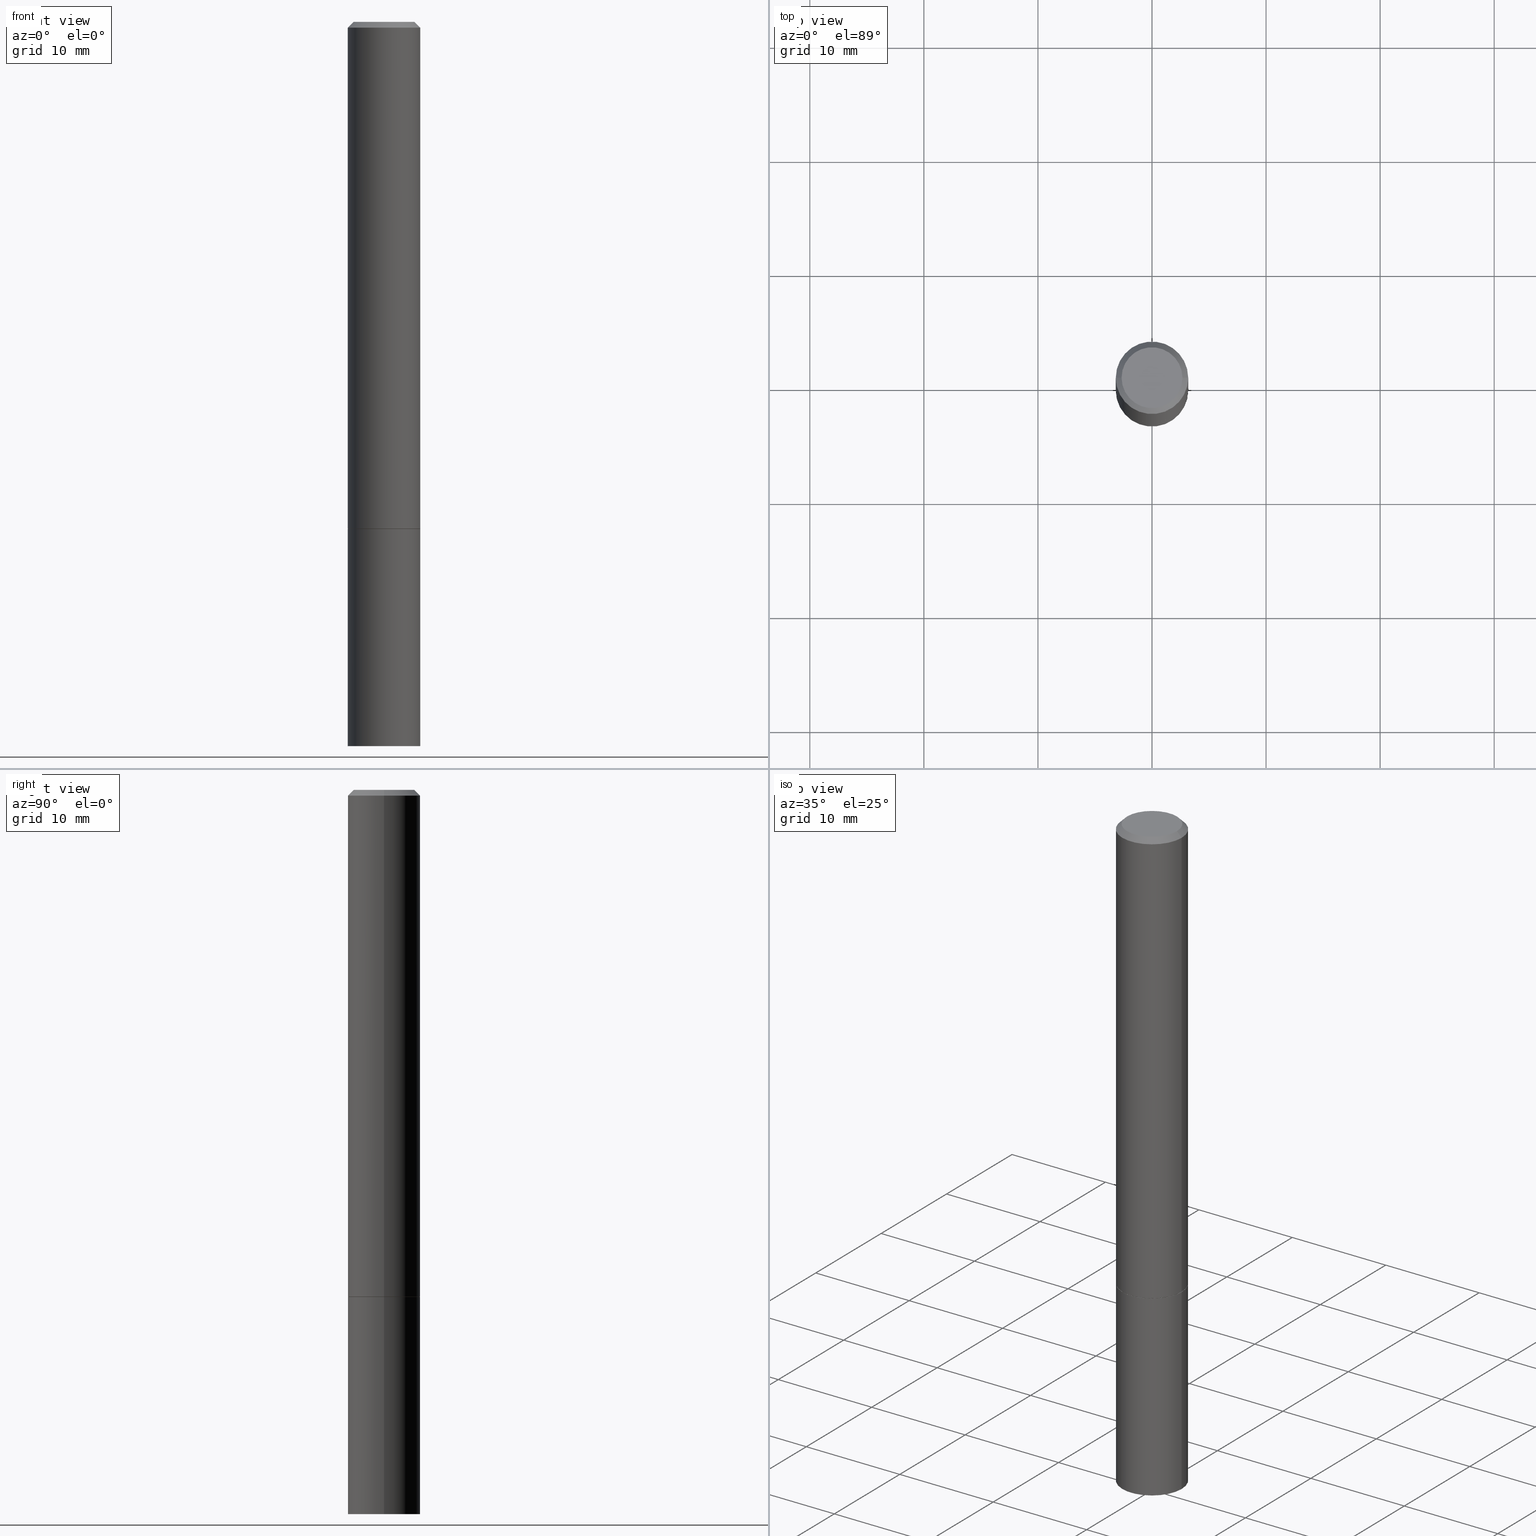
[diagram: canonical four-view strip — front | top / right | iso, engineering-drawing reading convention]
A machine part, canonical four-view strip (front | top / right | iso — engineering-drawing reading convention). The complete STEP part file that produces these views, byte-faithful:
ISO-10303-21;
HEADER;
FILE_DESCRIPTION (( 'STEP AP203' ),
    '1' );
FILE_NAME ('34704.STEP',
    '2024-02-27T16:46:14',
    ( '' ),
    ( '' ),
    'SwSTEP 2.0',
    'SolidWorks 2023',
    '' );
FILE_SCHEMA (( 'CONFIG_CONTROL_DESIGN' ));
ENDSEC;

DATA;
#1 = EDGE_LOOP ( 'NONE', ( #286, #320, #171, #222 ) ) ;
#2 = DIRECTION ( 'NONE',  ( 2.445468806185136597E-29, -3.491481338843145583E-15, -1.000000000000000000 ) ) ;
#3 = CIRCLE ( 'NONE', #174, 0.1249999999999997780 ) ;
#4 = EDGE_CURVE ( 'NONE', #283, #175, #153, .T. ) ;
#5 = DIRECTION ( 'NONE',  ( -2.445468806185136877E-29, 3.491481338843145188E-15, 1.000000000000000000 ) ) ;
#6 = PRODUCT_DEFINITION_FORMATION_WITH_SPECIFIED_SOURCE ( 'ANY', '', #290, .NOT_KNOWN. ) ;
#7 = MANIFOLD_SOLID_BREP ( 'Body-Move/Copy2[1]', #185 ) ;
#8 = CARTESIAN_POINT ( 'NONE',  ( -0.1249999999999997780, 8.030407079339188573E-16, -0.02000000000000002123 ) ) ;
#9 = PLANE ( 'NONE',  #313 ) ;
#10 = ORIENTED_EDGE ( 'NONE', *, *, #189, .F. ) ;
#11 = ADVANCED_FACE ( 'NONE', ( #233 ), #91, .T. ) ;
#12 = CALENDAR_DATE ( 2024, 27, 2 ) ;
#13 = CARTESIAN_POINT ( 'NONE',  ( 4.890937612370278413E-31, -6.982962677686297772E-17, -0.02000000000000002123 ) ) ;
#14 = AXIS2_PLACEMENT_3D ( 'NONE', #271, #274, #106 ) ;
#15 = CARTESIAN_POINT ( 'NONE',  ( -0.1249999999999997780, 8.030407079339188573E-16, -0.02000000000000002123 ) ) ;
#16 = ADVANCED_BREP_SHAPE_REPRESENTATION ( '34704', ( #7, #258, #21 ), #218 ) ;
#17 = DIRECTION ( 'NONE',  ( 1.000000000000000000, -6.982962677686266711E-15, 0.000000000000000000 ) ) ;
#18 = CARTESIAN_POINT ( 'NONE',  ( 7.332110811570565452E-16, 0.1049999999999998018, -3.666055405785296038E-16 ) ) ;
#19 = CARTESIAN_POINT ( 'NONE',  ( -0.1249999999999999029, 8.881784197001245421E-16, -6.148668862818627323E-30 ) ) ;
#20 = ADVANCED_FACE ( 'NONE', ( #178 ), #149, .T. ) ;
#21 = AXIS2_PLACEMENT_3D ( 'NONE', #278, #342, #304 ) ;
#22 = LENGTH_MEASURE_WITH_UNIT ( LENGTH_MEASURE( 0.02539999999999999897 ), #48 );
#23 = APPROVAL_STATUS ( 'not_yet_approved' ) ;
#24 = DIRECTION ( 'NONE',  ( -1.000000000000000000, 6.982962677686266711E-15, 0.000000000000000000 ) ) ;
#25 = PRODUCT_RELATED_PRODUCT_CATEGORY ( 'detail', '', ( #290 ) ) ;
#26 = CIRCLE ( 'NONE', #108, 0.1239999999999999991 ) ;
#27 = ORIENTED_EDGE ( 'NONE', *, *, #74, .T. ) ;
#28 = APPROVAL_DATE_TIME ( #224, #52 ) ;
#29 = CALENDAR_DATE ( 2024, 27, 2 ) ;
#30 = VERTEX_POINT ( 'NONE', #317 ) ;
#31 = SECURITY_CLASSIFICATION_LEVEL ( 'unclassified' ) ;
#32 = EDGE_LOOP ( 'NONE', ( #10, #279 ) ) ;
#33 = LOCAL_TIME ( 11, 46, 14.00000000000000000, #169 ) ;
#34 = ORIENTED_EDGE ( 'NONE', *, *, #82, .F. ) ;
#35 = APPROVAL ( #109, 'UNSPECIFIED' ) ;
#36 = LINE ( 'NONE', #293, #268 ) ;
#37 = VECTOR ( 'NONE', #5, 39.37007874015748143 ) ;
#38 = CARTESIAN_POINT ( 'NONE',  ( 6.113672015462842613E-29, -8.728703347107864943E-15, -2.500000000000000000 ) ) ;
#39 = AXIS2_PLACEMENT_3D ( 'NONE', #351, #298, #138 ) ;
#40 = DIRECTION ( 'NONE',  ( -2.445468806185136597E-29, 3.491481338843145583E-15, 1.000000000000000000 ) ) ;
#41 = EDGE_CURVE ( 'NONE', #170, #43, #36, .T. ) ;
#42 = VERTEX_POINT ( 'NONE', #157 ) ;
#43 = VERTEX_POINT ( 'NONE', #132 ) ;
#44 =( CONVERSION_BASED_UNIT ( 'INCH', #22 ) LENGTH_UNIT ( ) NAMED_UNIT ( #228 ) );
#45 = EDGE_LOOP ( 'NONE', ( #77, #58 ) ) ;
#46 = ORGANIZATION ( 'UNSPECIFIED', 'UNSPECIFIED', '' ) ;
#47 = DIRECTION ( 'NONE',  ( 2.445468806185136597E-29, -3.491481338843145583E-15, -1.000000000000000000 ) ) ;
#48 =( LENGTH_UNIT ( ) NAMED_UNIT ( * ) SI_UNIT ( $, .METRE. ) );
#49 = DIRECTION ( 'NONE',  ( -1.000000000000000000, 6.982962677686265922E-15, -4.876176775795935793E-29 ) ) ;
#50 = CARTESIAN_POINT ( 'NONE',  ( 4.890937612370278413E-31, -6.982962677686297772E-17, -0.02000000000000002123 ) ) ;
#51 = CIRCLE ( 'NONE', #146, 0.1250000000000000000 ) ;
#52 = APPROVAL ( #362, 'UNSPECIFIED' ) ;
#53 = COORDINATED_UNIVERSAL_TIME_OFFSET ( 5, 0, .BEHIND. ) ;
#54 = LOCAL_TIME ( 11, 46, 14.00000000000000000, #340 ) ;
#55 = ORIENTED_EDGE ( 'NONE', *, *, #265, .T. ) ;
#56 = APPLICATION_CONTEXT ( 'configuration controlled 3d designs of mechanical parts and assemblies' ) ;
#57 = EDGE_CURVE ( 'NONE', #111, #30, #99, .T. ) ;
#58 = ORIENTED_EDGE ( 'NONE', *, *, #312, .T. ) ;
#59 = ORIENTED_EDGE ( 'NONE', *, *, #4, .T. ) ;
#60 = EDGE_LOOP ( 'NONE', ( #249, #81, #143, #262 ) ) ;
#61 = CIRCLE ( 'NONE', #103, 0.1250000000000000000 ) ;
#62 = ORIENTED_EDGE ( 'NONE', *, *, #189, .T. ) ;
#63 = EDGE_CURVE ( 'NONE', #42, #30, #51, .T. ) ;
#64 = CARTESIAN_POINT ( 'NONE',  ( 8.728703347108260359E-16, 0.1249999999999938799, -1.750000000000000666 ) ) ;
#65 = VERTEX_POINT ( 'NONE', #15 ) ;
#66 = ORIENTED_EDGE ( 'NONE', *, *, #341, .F. ) ;
#67 = FACE_OUTER_BOUND ( 'NONE', #32, .T. ) ;
#68 = ORIENTED_EDGE ( 'NONE', *, *, #297, .F. ) ;
#69 = FACE_OUTER_BOUND ( 'NONE', #45, .T. ) ;
#70 = CARTESIAN_POINT ( 'NONE',  ( 4.279570410823989044E-29, -6.110092342975505460E-15, -1.750000000000000222 ) ) ;
#71 = UNCERTAINTY_MEASURE_WITH_UNIT (LENGTH_MEASURE( 1.000000000000000082E-05 ), #44, 'distance_accuracy_value', 'NONE');
#72 = DIRECTION ( 'NONE',  ( -2.445468806185136597E-29, 3.491481338843145583E-15, 1.000000000000000000 ) ) ;
#73 = CYLINDRICAL_SURFACE ( 'NONE', #97, 0.1249999999999999029 ) ;
#74 = EDGE_CURVE ( 'NONE', #283, #43, #241, .T. ) ;
#75 = CIRCLE ( 'NONE', #120, 0.1250000000000000000 ) ;
#76 = CARTESIAN_POINT ( 'NONE',  ( 0.000000000000000000, 0.000000000000000000, 0.000000000000000000 ) ) ;
#77 = ORIENTED_EDGE ( 'NONE', *, *, #63, .T. ) ;
#78 = DATE_AND_TIME ( #333, #131 ) ;
#79 = AXIS2_PLACEMENT_3D ( 'NONE', #217, #118, #266 ) ;
#80 = AXIS2_PLACEMENT_3D ( 'NONE', #263, #346, #208 ) ;
#81 = ORIENTED_EDGE ( 'NONE', *, *, #244, .T. ) ;
#82 = EDGE_CURVE ( 'NONE', #343, #65, #230, .T. ) ;
#83 = PERSON_AND_ORGANIZATION ( #210, #46 ) ;
#84 = ORIENTED_EDGE ( 'NONE', *, *, #74, .F. ) ;
#85 = ORIENTED_EDGE ( 'NONE', *, *, #223, .F. ) ;
#86 = DATE_TIME_ROLE ( 'classification_date' ) ;
#87 = APPROVAL ( #23, 'UNSPECIFIED' ) ;
#88 = CIRCLE ( 'NONE', #163, 0.1049999999999998018 ) ;
#89 = LOCAL_TIME ( 11, 46, 14.00000000000000000, #53 ) ;
#90 = CARTESIAN_POINT ( 'NONE',  ( 0.1249999999999997780, -9.273918764983027713E-16, -0.02000000000000002123 ) ) ;
#91 = PLANE ( 'NONE',  #234 ) ;
#92 = DIRECTION ( 'NONE',  ( 1.000000000000000000, -6.982962677686266711E-15, 4.876176775795935793E-29 ) ) ;
#93 = CARTESIAN_POINT ( 'NONE',  ( 0.1250000000000000000, -8.728703347107833388E-16, 6.095220969744919741E-30 ) ) ;
#94 = PLANE ( 'NONE',  #173 ) ;
#95 = CC_DESIGN_PERSON_AND_ORGANIZATION_ASSIGNMENT ( #246, #276, ( #290 ) ) ;
#96 = DIRECTION ( 'NONE',  ( -2.445468806185136597E-29, 3.491481338843145583E-15, 1.000000000000000000 ) ) ;
#97 = AXIS2_PLACEMENT_3D ( 'NONE', #76, #355, #104 ) ;
#98 = DIRECTION ( 'NONE',  ( 2.438088387897960049E-29, -3.491481338843145188E-15, -1.000000000000000000 ) ) ;
#99 = LINE ( 'NONE', #237, #37 ) ;
#100 = DIRECTION ( 'NONE',  ( -2.445468806185136597E-29, 3.491481338843145583E-15, 1.000000000000000000 ) ) ;
#101 = ADVANCED_FACE ( 'NONE', ( #345 ), #94, .F. ) ;
#102 = CARTESIAN_POINT ( 'NONE',  ( 4.279570410823989044E-29, -6.110092342975505460E-15, -1.750000000000000222 ) ) ;
#103 = AXIS2_PLACEMENT_3D ( 'NONE', #38, #96, #130 ) ;
#104 = DIRECTION ( 'NONE',  ( 1.000000000000000000, -6.982962677686266711E-15, 4.876176775795935793E-29 ) ) ;
#105 = DIRECTION ( 'NONE',  ( 0.7071067811865466846, -7.319954787623252890E-15, -0.7071067811865483499 ) ) ;
#106 = DIRECTION ( 'NONE',  ( 1.000000000000000000, -6.982962677686270655E-15, 0.000000000000000000 ) ) ;
#107 = CIRCLE ( 'NONE', #79, 0.1249999999999997780 ) ;
#108 = AXIS2_PLACEMENT_3D ( 'NONE', #152, #344, #232 ) ;
#109 = APPROVAL_STATUS ( 'not_yet_approved' ) ;
#110 = COORDINATED_UNIVERSAL_TIME_OFFSET ( 5, 0, .BEHIND. ) ;
#111 = VERTEX_POINT ( 'NONE', #160 ) ;
#112 = PERSON_AND_ORGANIZATION ( #210, #46 ) ;
#113 = CC_DESIGN_APPROVAL ( #52, ( #6 ) ) ;
#114 = ORIENTED_EDGE ( 'NONE', *, *, #297, .T. ) ;
#115 = PERSON_AND_ORGANIZATION_ROLE ( 'classification_officer' ) ;
#116 = ORIENTED_EDGE ( 'NONE', *, *, #57, .T. ) ;
#117 = PRODUCT_DEFINITION ( 'UNKNOWN', '', #6, #125 ) ;
#118 = DIRECTION ( 'NONE',  ( -2.445468806185136597E-29, 3.491481338843145583E-15, 1.000000000000000000 ) ) ;
#119 = DATE_AND_TIME ( #12, #54 ) ;
#120 = AXIS2_PLACEMENT_3D ( 'NONE', #326, #245, #186 ) ;
#121 = DIRECTION ( 'NONE',  ( -1.000000000000000000, 6.982962677686266711E-15, 0.000000000000000000 ) ) ;
#122 = DIRECTION ( 'NONE',  ( 1.000000000000000000, -6.982962677686262766E-15, 0.000000000000000000 ) ) ;
#123 = DIRECTION ( 'NONE',  ( 1.000000000000000000, -6.982962677686265922E-15, 4.876176775795935793E-29 ) ) ;
#124 = DIRECTION ( 'NONE',  ( -0.7071067811865466846, 2.468850131082247989E-15, -0.7071067811865483499 ) ) ;
#125 = DESIGN_CONTEXT ( 'detailed design', #56, 'design' ) ;
#126 = EDGE_CURVE ( 'NONE', #175, #65, #107, .T. ) ;
#127 = DIRECTION ( 'NONE',  ( -2.445468806185136877E-29, 3.491481338843145188E-15, 1.000000000000000000 ) ) ;
#128 = CARTESIAN_POINT ( 'NONE',  ( 8.728703347108443769E-16, 0.1249999999999912709, -2.500000000000000444 ) ) ;
#129 = APPLICATION_CONTEXT ( 'configuration controlled 3d designs of mechanical parts and assemblies' ) ;
#130 = DIRECTION ( 'NONE',  ( 1.000000000000000000, -6.982962677686270655E-15, 0.000000000000000000 ) ) ;
#131 = LOCAL_TIME ( 11, 46, 14.00000000000000000, #219 ) ;
#132 = CARTESIAN_POINT ( 'NONE',  ( -0.1250000000000000278, -2.200036824506634488E-15, -1.749000000000000110 ) ) ;
#133 = EDGE_CURVE ( 'NONE', #343, #363, #88, .T. ) ;
#134 = DIRECTION ( 'NONE',  ( 1.000000000000000000, -6.982962677686270655E-15, 0.000000000000000000 ) ) ;
#135 = CARTESIAN_POINT ( 'NONE',  ( 4.277124942017804562E-29, -6.106600861636661664E-15, -1.749000000000000110 ) ) ;
#136 = CARTESIAN_POINT ( 'NONE',  ( 6.113672015462842613E-29, -8.728703347107864943E-15, -2.500000000000000000 ) ) ;
#137 = DIRECTION ( 'NONE',  ( 2.438088387897960049E-29, -3.491481338843145188E-15, -1.000000000000000000 ) ) ;
#138 = DIRECTION ( 'NONE',  ( 1.000000000000000000, -6.982962677686266711E-15, 4.876176775795935793E-29 ) ) ;
#139 = CIRCLE ( 'NONE', #321, 0.1250000000000000000 ) ;
#140 = LINE ( 'NONE', #19, #338 ) ;
#141 =( NAMED_UNIT ( * ) SI_UNIT ( $, .STERADIAN. ) SOLID_ANGLE_UNIT ( ) );
#142 = CC_DESIGN_DATE_AND_TIME_ASSIGNMENT ( #119, #86, ( #303 ) ) ;
#143 = ORIENTED_EDGE ( 'NONE', *, *, #231, .T. ) ;
#144 = APPROVAL_DATE_TIME ( #335, #87 ) ;
#145 = PERSON_AND_ORGANIZATION ( #210, #46 ) ;
#146 = AXIS2_PLACEMENT_3D ( 'NONE', #325, #296, #122 ) ;
#147 = ADVANCED_FACE ( 'NONE', ( #67 ), #9, .F. ) ;
#148 = APPROVAL_PERSON_ORGANIZATION ( #199, #87, #352 ) ;
#149 = CYLINDRICAL_SURFACE ( 'NONE', #302, 0.1250000000000000000 ) ;
#150 = CIRCLE ( 'NONE', #227, 0.1239999999999999991 ) ;
#151 = CARTESIAN_POINT ( 'NONE',  ( 0.1239999999999999991, -6.975979715008602784E-15, -1.750000000000000222 ) ) ;
#152 = CARTESIAN_POINT ( 'NONE',  ( 4.279570410823989044E-29, -6.110092342975505460E-15, -1.750000000000000222 ) ) ;
#153 = LINE ( 'NONE', #323, #365 ) ;
#154 = CC_DESIGN_PERSON_AND_ORGANIZATION_ASSIGNMENT ( #145, #115, ( #303 ) ) ;
#155 = VECTOR ( 'NONE', #127, 39.37007874015748143 ) ;
#156 = CONICAL_SURFACE ( 'NONE', #289, 0.1249999999999997780, 0.7853981633974471688 ) ;
#157 = CARTESIAN_POINT ( 'NONE',  ( 0.1250000000000000000, -6.982962677686288010E-15, -1.750000000000000222 ) ) ;
#158 = FACE_OUTER_BOUND ( 'NONE', #60, .T. ) ;
#159 = DIRECTION ( 'NONE',  ( 1.000000000000000000, -6.982962677686265922E-15, 4.876176775795935793E-29 ) ) ;
#160 = CARTESIAN_POINT ( 'NONE',  ( -0.1250000000000000000, -6.531219425341559180E-15, -2.500000000000000000 ) ) ;
#161 = EDGE_CURVE ( 'NONE', #361, #42, #204, .T. ) ;
#162 = ADVANCED_FACE ( 'NONE', ( #291 ), #164, .T. ) ;
#163 = AXIS2_PLACEMENT_3D ( 'NONE', #259, #319, #226 ) ;
#164 = CONICAL_SURFACE ( 'NONE', #309, 0.1249999999999997780, 0.7853981633974471688 ) ;
#165 = CC_DESIGN_APPROVAL ( #35, ( #117 ) ) ;
#166 = ORIENTED_EDGE ( 'NONE', *, *, #301, .F. ) ;
#167 = DATE_TIME_ROLE ( 'creation_date' ) ;
#168 = ORIENTED_EDGE ( 'NONE', *, *, #223, .T. ) ;
#169 = COORDINATED_UNIVERSAL_TIME_OFFSET ( 5, 0, .BEHIND. ) ;
#170 = VERTEX_POINT ( 'NONE', #202 ) ;
#171 = ORIENTED_EDGE ( 'NONE', *, *, #82, .T. ) ;
#172 = EDGE_LOOP ( 'NONE', ( #280, #277 ) ) ;
#173 = AXIS2_PLACEMENT_3D ( 'NONE', #18, #137, #49 ) ;
#174 = AXIS2_PLACEMENT_3D ( 'NONE', #328, #72, #17 ) ;
#175 = VERTEX_POINT ( 'NONE', #90 ) ;
#176 = DIRECTION ( 'NONE',  ( -2.445468806185136597E-29, 3.491481338843145583E-15, 1.000000000000000000 ) ) ;
#177 = ORIENTED_EDGE ( 'NONE', *, *, #63, .F. ) ;
#178 = FACE_OUTER_BOUND ( 'NONE', #203, .T. ) ;
#179 = CIRCLE ( 'NONE', #206, 0.1049999999999998018 ) ;
#180 = DIRECTION ( 'NONE',  ( -2.438088387897960049E-29, 3.491481338843145188E-15, 1.000000000000000000 ) ) ;
#181 = PRODUCT_DEFINITION_SHAPE ( 'NONE', 'NONE',  #117 ) ;
#182 = DIRECTION ( 'NONE',  ( -2.445468806185136877E-29, 3.491481338843145188E-15, 1.000000000000000000 ) ) ;
#183 = DIRECTION ( 'NONE',  ( 1.000000000000000000, -6.982962677686270655E-15, 0.000000000000000000 ) ) ;
#184 = ORIENTED_EDGE ( 'NONE', *, *, #126, .T. ) ;
#185 = CLOSED_SHELL ( 'NONE', ( #20, #11, #240, #318 ) ) ;
#186 = DIRECTION ( 'NONE',  ( 1.000000000000000000, -6.982962677686262766E-15, 0.000000000000000000 ) ) ;
#187 = LOCAL_TIME ( 11, 46, 14.00000000000000000, #110 ) ;
#188 = FACE_OUTER_BOUND ( 'NONE', #1, .T. ) ;
#189 = EDGE_CURVE ( 'NONE', #255, #170, #26, .T. ) ;
#190 = CARTESIAN_POINT ( 'NONE',  ( 0.1250000000000000000, -6.979471196347445792E-15, -1.749000000000000110 ) ) ;
#191 = CLOSED_SHELL ( 'NONE', ( #198, #356, #162, #329, #207, #257, #147, #101 ) ) ;
#192 = CONICAL_SURFACE ( 'NONE', #354, 0.1239999999999999991, 0.7853981633974141952 ) ;
#193 = APPROVAL_DATE_TIME ( #78, #35 ) ;
#194 = DATE_AND_TIME ( #220, #89 ) ;
#195 = EDGE_LOOP ( 'NONE', ( #166, #55, #59, #281 ) ) ;
#196 = APPLICATION_PROTOCOL_DEFINITION ( 'international standard', 'config_control_design', 1994, #56 ) ;
#197 = ORIENTED_EDGE ( 'NONE', *, *, #301, .T. ) ;
#198 = ADVANCED_FACE ( 'NONE', ( #287 ), #366, .T. ) ;
#199 = PERSON_AND_ORGANIZATION ( #210, #46 ) ;
#200 = FACE_OUTER_BOUND ( 'NONE', #195, .T. ) ;
#201 = CC_DESIGN_PERSON_AND_ORGANIZATION_ASSIGNMENT ( #251, #254, ( #117 ) ) ;
#202 = CARTESIAN_POINT ( 'NONE',  ( -0.1239999999999999991, -5.223720896284758045E-15, -1.750000000000000222 ) ) ;
#203 = EDGE_LOOP ( 'NONE', ( #168, #116, #177, #339 ) ) ;
#204 = LINE ( 'NONE', #93, #155 ) ;
#205 = DIRECTION ( 'NONE',  ( 1.000000000000000000, -6.982962677686270655E-15, 0.000000000000000000 ) ) ;
#206 = AXIS2_PLACEMENT_3D ( 'NONE', #353, #214, #159 ) ;
#207 = ADVANCED_FACE ( 'NONE', ( #200 ), #324, .T. ) ;
#208 = DIRECTION ( 'NONE',  ( 1.000000000000000000, -6.982962677686270655E-15, 0.000000000000000000 ) ) ;
#209 = DIRECTION ( 'NONE',  ( -0.7071067811865232589, 7.493145998870265808E-15, 0.7071067811865715536 ) ) ;
#210 = PERSON ( 'UNSPECIFIED', 'UNSPECIFIED', 'UNSPECIFIED', ('UNSPECIFIED'), ('UNSPECIFIED'), ('UNSPECIFIED') ) ;
#211 = CARTESIAN_POINT ( 'NONE',  ( 4.279570410823989044E-29, -6.110092342975505460E-15, -1.750000000000000222 ) ) ;
#212 = ORIENTED_EDGE ( 'NONE', *, *, #231, .F. ) ;
#213 = DIRECTION ( 'NONE',  ( -2.445468806185136597E-29, 3.491481338843145583E-15, 1.000000000000000000 ) ) ;
#214 = DIRECTION ( 'NONE',  ( -2.445468806185136597E-29, 3.491481338843145583E-15, 1.000000000000000000 ) ) ;
#215 =( NAMED_UNIT ( * ) PLANE_ANGLE_UNIT ( ) SI_UNIT ( $, .RADIAN. ) );
#216 = FACE_OUTER_BOUND ( 'NONE', #288, .T. ) ;
#217 = CARTESIAN_POINT ( 'NONE',  ( 4.890937612370278413E-31, -6.982962677686297772E-17, -0.02000000000000002123 ) ) ;
#218 =( GEOMETRIC_REPRESENTATION_CONTEXT ( 3 ) GLOBAL_UNCERTAINTY_ASSIGNED_CONTEXT ( ( #71 ) ) GLOBAL_UNIT_ASSIGNED_CONTEXT ( ( #44, #215, #141 ) ) REPRESENTATION_CONTEXT ( 'NONE', 'WORKASPACE' ) );
#219 = COORDINATED_UNIVERSAL_TIME_OFFSET ( 5, 0, .BEHIND. ) ;
#220 = CALENDAR_DATE ( 2024, 27, 2 ) ;
#221 = PERSON_AND_ORGANIZATION_ROLE ( 'creator' ) ;
#222 = ORIENTED_EDGE ( 'NONE', *, *, #292, .T. ) ;
#223 = EDGE_CURVE ( 'NONE', #361, #111, #61, .T. ) ;
#224 = DATE_AND_TIME ( #308, #187 ) ;
#225 = ORIENTED_EDGE ( 'NONE', *, *, #126, .F. ) ;
#226 = DIRECTION ( 'NONE',  ( 1.000000000000000000, -6.982962677686265922E-15, 4.876176775795935793E-29 ) ) ;
#227 = AXIS2_PLACEMENT_3D ( 'NONE', #70, #176, #183 ) ;
#228 = DIMENSIONAL_EXPONENTS ( 1.000000000000000000, 0.000000000000000000, 0.000000000000000000, 0.000000000000000000, 0.000000000000000000, 0.000000000000000000, 0.000000000000000000 ) ;
#229 = DIRECTION ( 'NONE',  ( -2.445468806185136597E-29, 3.491481338843145583E-15, 1.000000000000000000 ) ) ;
#230 = LINE ( 'NONE', #8, #330 ) ;
#231 = EDGE_CURVE ( 'NONE', #255, #283, #322, .T. ) ;
#232 = DIRECTION ( 'NONE',  ( 1.000000000000000000, -6.982962677686270655E-15, 0.000000000000000000 ) ) ;
#233 = FACE_OUTER_BOUND ( 'NONE', #310, .T. ) ;
#234 = AXIS2_PLACEMENT_3D ( 'NONE', #128, #264, #267 ) ;
#235 = CC_DESIGN_APPROVAL ( #87, ( #303 ) ) ;
#236 = DIRECTION ( 'NONE',  ( 0.7071067811865232589, -2.468850131082003836E-15, 0.7071067811865715536 ) ) ;
#237 = CARTESIAN_POINT ( 'NONE',  ( -0.1250000000000000000, 8.881784197001252323E-16, -6.148668862818632227E-30 ) ) ;
#238 = DIRECTION ( 'NONE',  ( -2.445468806185136877E-29, 3.491481338843145188E-15, 1.000000000000000000 ) ) ;
#239 = FACE_OUTER_BOUND ( 'NONE', #294, .T. ) ;
#240 = ADVANCED_FACE ( 'NONE', ( #69 ), #350, .F. ) ;
#241 = CIRCLE ( 'NONE', #348, 0.1250000000000000000 ) ;
#242 = CIRCLE ( 'NONE', #14, 0.1250000000000000000 ) ;
#243 = LINE ( 'NONE', #357, #331 ) ;
#244 = EDGE_CURVE ( 'NONE', #170, #255, #150, .T. ) ;
#245 = DIRECTION ( 'NONE',  ( -2.445468806185136597E-29, 3.491481338843145583E-15, 1.000000000000000000 ) ) ;
#246 = PERSON_AND_ORGANIZATION ( #210, #46 ) ;
#247 = APPROVAL_PERSON_ORGANIZATION ( #256, #35, #360 ) ;
#248 = ORIENTED_EDGE ( 'NONE', *, *, #312, .F. ) ;
#249 = ORIENTED_EDGE ( 'NONE', *, *, #41, .F. ) ;
#250 = EDGE_LOOP ( 'NONE', ( #66, #347, #184, #34 ) ) ;
#251 = PERSON_AND_ORGANIZATION ( #210, #46 ) ;
#252 = EDGE_CURVE ( 'NONE', #363, #175, #243, .T. ) ;
#253 = SHAPE_DEFINITION_REPRESENTATION ( #181, #16 ) ;
#254 = PERSON_AND_ORGANIZATION_ROLE ( 'creator' ) ;
#255 = VERTEX_POINT ( 'NONE', #272 ) ;
#256 = PERSON_AND_ORGANIZATION ( #210, #46 ) ;
#257 = ADVANCED_FACE ( 'NONE', ( #158 ), #192, .T. ) ;
#258 = MANIFOLD_SOLID_BREP ( 'Body-Move/Copy2[2]', #191 ) ;
#259 = CARTESIAN_POINT ( 'NONE',  ( 0.000000000000000000, 0.000000000000000000, 0.000000000000000000 ) ) ;
#260 = DIRECTION ( 'NONE',  ( -2.445468806185136597E-29, 3.491481338843145583E-15, 1.000000000000000000 ) ) ;
#261 = DIRECTION ( 'NONE',  ( -1.000000000000000000, 6.982962677686265922E-15, -4.876176775795935793E-29 ) ) ;
#262 = ORIENTED_EDGE ( 'NONE', *, *, #265, .F. ) ;
#263 = CARTESIAN_POINT ( 'NONE',  ( 4.279570410823989044E-29, -6.110092342975505460E-15, -1.750000000000000222 ) ) ;
#264 = DIRECTION ( 'NONE',  ( 2.438088387897960049E-29, -3.491481338843145188E-15, -1.000000000000000000 ) ) ;
#265 = EDGE_CURVE ( 'NONE', #43, #283, #242, .T. ) ;
#266 = DIRECTION ( 'NONE',  ( 1.000000000000000000, -6.982962677686266711E-15, 0.000000000000000000 ) ) ;
#267 = DIRECTION ( 'NONE',  ( -1.000000000000000000, 6.982962677686265922E-15, -4.876176775795935793E-29 ) ) ;
#268 = VECTOR ( 'NONE', #209, 39.37007874015748854 ) ;
#269 = APPLICATION_PROTOCOL_DEFINITION ( 'international standard', 'config_control_design', 1994, #129 ) ;
#270 = CARTESIAN_POINT ( 'NONE',  ( 0.000000000000000000, 0.000000000000000000, 0.000000000000000000 ) ) ;
#271 = CARTESIAN_POINT ( 'NONE',  ( 4.277124942017804562E-29, -6.106600861636661664E-15, -1.749000000000000110 ) ) ;
#272 = CARTESIAN_POINT ( 'NONE',  ( 0.1239999999999999991, -6.975979715008602784E-15, -1.750000000000000222 ) ) ;
#273 = APPROVAL_PERSON_ORGANIZATION ( #364, #52, #282 ) ;
#274 = DIRECTION ( 'NONE',  ( -2.445468806185136597E-29, 3.491481338843145583E-15, 1.000000000000000000 ) ) ;
#275 = CC_DESIGN_SECURITY_CLASSIFICATION ( #303, ( #6 ) ) ;
#276 = PERSON_AND_ORGANIZATION_ROLE ( 'design_owner' ) ;
#277 = ORIENTED_EDGE ( 'NONE', *, *, #341, .T. ) ;
#278 = CARTESIAN_POINT ( 'NONE',  ( 0.000000000000000000, 0.000000000000000000, 0.000000000000000000 ) ) ;
#279 = ORIENTED_EDGE ( 'NONE', *, *, #244, .F. ) ;
#280 = ORIENTED_EDGE ( 'NONE', *, *, #133, .T. ) ;
#281 = ORIENTED_EDGE ( 'NONE', *, *, #292, .F. ) ;
#282 = APPROVAL_ROLE ( '' ) ;
#283 = VERTEX_POINT ( 'NONE', #190 ) ;
#284 = ORIENTED_EDGE ( 'NONE', *, *, #161, .T. ) ;
#285 = CC_DESIGN_PERSON_AND_ORGANIZATION_ASSIGNMENT ( #83, #311, ( #6 ) ) ;
#286 = ORIENTED_EDGE ( 'NONE', *, *, #252, .F. ) ;
#287 = FACE_OUTER_BOUND ( 'NONE', #307, .T. ) ;
#288 = EDGE_LOOP ( 'NONE', ( #27, #197, #225, #305 ) ) ;
#289 = AXIS2_PLACEMENT_3D ( 'NONE', #50, #47, #24 ) ;
#290 = PRODUCT ( '34704', '34704', '', ( #337 ) ) ;
#291 = FACE_OUTER_BOUND ( 'NONE', #250, .T. ) ;
#292 = EDGE_CURVE ( 'NONE', #65, #175, #3, .T. ) ;
#293 = CARTESIAN_POINT ( 'NONE',  ( -0.1239999999999999991, -5.229019350632981236E-15, -1.750000000000000222 ) ) ;
#294 = EDGE_LOOP ( 'NONE', ( #336, #114, #284, #248 ) ) ;
#295 = CARTESIAN_POINT ( 'NONE',  ( 0.1049999999999998018, -8.238720831321562839E-16, 5.444276250344140956E-30 ) ) ;
#296 = DIRECTION ( 'NONE',  ( -2.445468806185136597E-29, 3.491481338843145583E-15, 1.000000000000000000 ) ) ;
#297 = EDGE_CURVE ( 'NONE', #111, #361, #139, .T. ) ;
#298 = DIRECTION ( 'NONE',  ( -2.445468806185136597E-29, 3.491481338843145583E-15, 1.000000000000000000 ) ) ;
#299 = CARTESIAN_POINT ( 'NONE',  ( 0.1250000000000000000, -9.601573681818648281E-15, -2.500000000000000000 ) ) ;
#300 = DIRECTION ( 'NONE',  ( 1.000000000000000000, -6.982962677686270655E-15, 0.000000000000000000 ) ) ;
#301 = EDGE_CURVE ( 'NONE', #43, #65, #140, .T. ) ;
#302 = AXIS2_PLACEMENT_3D ( 'NONE', #270, #260, #92 ) ;
#303 = SECURITY_CLASSIFICATION ( '', '', #31 ) ;
#304 = DIRECTION ( 'NONE',  ( 1.000000000000000000, 0.000000000000000000, 0.000000000000000000 ) ) ;
#305 = ORIENTED_EDGE ( 'NONE', *, *, #4, .F. ) ;
#306 = ORIENTED_EDGE ( 'NONE', *, *, #41, .T. ) ;
#307 = EDGE_LOOP ( 'NONE', ( #62, #306, #84, #212 ) ) ;
#308 = CALENDAR_DATE ( 2024, 27, 2 ) ;
#309 = AXIS2_PLACEMENT_3D ( 'NONE', #13, #2, #121 ) ;
#310 = EDGE_LOOP ( 'NONE', ( #85, #68 ) ) ;
#311 = PERSON_AND_ORGANIZATION_ROLE ( 'design_supplier' ) ;
#312 = EDGE_CURVE ( 'NONE', #30, #42, #75, .T. ) ;
#313 = AXIS2_PLACEMENT_3D ( 'NONE', #211, #180, #123 ) ;
#314 = VECTOR ( 'NONE', #236, 39.37007874015748854 ) ;
#315 = CARTESIAN_POINT ( 'NONE',  ( 0.000000000000000000, 0.000000000000000000, 0.000000000000000000 ) ) ;
#316 = DIRECTION ( 'NONE',  ( 1.000000000000000000, -6.982962677686266711E-15, 4.876176775795935793E-29 ) ) ;
#317 = CARTESIAN_POINT ( 'NONE',  ( -0.1250000000000000000, -6.531219425341559180E-15, -1.750000000000000222 ) ) ;
#318 = ADVANCED_FACE ( 'NONE', ( #239 ), #332, .T. ) ;
#319 = DIRECTION ( 'NONE',  ( -2.445468806185136597E-29, 3.491481338843145583E-15, 1.000000000000000000 ) ) ;
#320 = ORIENTED_EDGE ( 'NONE', *, *, #133, .F. ) ;
#321 = AXIS2_PLACEMENT_3D ( 'NONE', #136, #100, #300 ) ;
#322 = LINE ( 'NONE', #151, #314 ) ;
#323 = CARTESIAN_POINT ( 'NONE',  ( 0.1249999999999999029, -8.728703347107826486E-16, 6.095220969744914837E-30 ) ) ;
#324 = CYLINDRICAL_SURFACE ( 'NONE', #327, 0.1249999999999999029 ) ;
#325 = CARTESIAN_POINT ( 'NONE',  ( 4.279570410823989044E-29, -6.110092342975505460E-15, -1.750000000000000222 ) ) ;
#326 = CARTESIAN_POINT ( 'NONE',  ( 4.279570410823989044E-29, -6.110092342975505460E-15, -1.750000000000000222 ) ) ;
#327 = AXIS2_PLACEMENT_3D ( 'NONE', #315, #229, #316 ) ;
#328 = CARTESIAN_POINT ( 'NONE',  ( 4.890937612370278413E-31, -6.982962677686297772E-17, -0.02000000000000002123 ) ) ;
#329 = ADVANCED_FACE ( 'NONE', ( #188 ), #156, .T. ) ;
#330 = VECTOR ( 'NONE', #124, 39.37007874015748143 ) ;
#331 = VECTOR ( 'NONE', #105, 39.37007874015748143 ) ;
#332 = CYLINDRICAL_SURFACE ( 'NONE', #39, 0.1250000000000000000 ) ;
#333 = CALENDAR_DATE ( 2024, 27, 2 ) ;
#334 = CC_DESIGN_DATE_AND_TIME_ASSIGNMENT ( #194, #167, ( #117 ) ) ;
#335 = DATE_AND_TIME ( #29, #33 ) ;
#336 = ORIENTED_EDGE ( 'NONE', *, *, #57, .F. ) ;
#337 = MECHANICAL_CONTEXT ( 'NONE', #129, 'mechanical' ) ;
#338 = VECTOR ( 'NONE', #238, 39.37007874015748143 ) ;
#339 = ORIENTED_EDGE ( 'NONE', *, *, #161, .F. ) ;
#340 = COORDINATED_UNIVERSAL_TIME_OFFSET ( 5, 0, .BEHIND. ) ;
#341 = EDGE_CURVE ( 'NONE', #363, #343, #179, .T. ) ;
#342 = DIRECTION ( 'NONE',  ( 0.000000000000000000, 0.000000000000000000, 1.000000000000000000 ) ) ;
#343 = VERTEX_POINT ( 'NONE', #358 ) ;
#344 = DIRECTION ( 'NONE',  ( -2.445468806185136597E-29, 3.491481338843145583E-15, 1.000000000000000000 ) ) ;
#345 = FACE_OUTER_BOUND ( 'NONE', #172, .T. ) ;
#346 = DIRECTION ( 'NONE',  ( -2.445468806185136597E-29, 3.491481338843145583E-15, 1.000000000000000000 ) ) ;
#347 = ORIENTED_EDGE ( 'NONE', *, *, #252, .T. ) ;
#348 = AXIS2_PLACEMENT_3D ( 'NONE', #135, #40, #205 ) ;
#349 = CC_DESIGN_PERSON_AND_ORGANIZATION_ASSIGNMENT ( #112, #221, ( #6 ) ) ;
#350 = PLANE ( 'NONE',  #359 ) ;
#351 = CARTESIAN_POINT ( 'NONE',  ( 0.000000000000000000, 0.000000000000000000, 0.000000000000000000 ) ) ;
#352 = APPROVAL_ROLE ( '' ) ;
#353 = CARTESIAN_POINT ( 'NONE',  ( 0.000000000000000000, 0.000000000000000000, 0.000000000000000000 ) ) ;
#354 = AXIS2_PLACEMENT_3D ( 'NONE', #102, #213, #134 ) ;
#355 = DIRECTION ( 'NONE',  ( -2.445468806185136597E-29, 3.491481338843145583E-15, 1.000000000000000000 ) ) ;
#356 = ADVANCED_FACE ( 'NONE', ( #216 ), #73, .T. ) ;
#357 = CARTESIAN_POINT ( 'NONE',  ( 0.1249999999999997780, -9.273918764983027713E-16, -0.02000000000000002123 ) ) ;
#358 = CARTESIAN_POINT ( 'NONE',  ( -0.1049999999999998018, 7.681258945454876027E-16, -5.249639473182157468E-30 ) ) ;
#359 = AXIS2_PLACEMENT_3D ( 'NONE', #64, #98, #261 ) ;
#360 = APPROVAL_ROLE ( '' ) ;
#361 = VERTEX_POINT ( 'NONE', #299 ) ;
#362 = APPROVAL_STATUS ( 'not_yet_approved' ) ;
#363 = VERTEX_POINT ( 'NONE', #295 ) ;
#364 = PERSON_AND_ORGANIZATION ( #210, #46 ) ;
#365 = VECTOR ( 'NONE', #182, 39.37007874015748143 ) ;
#366 = CONICAL_SURFACE ( 'NONE', #80, 0.1239999999999999991, 0.7853981633974141952 ) ;
ENDSEC;
END-ISO-10303-21;
